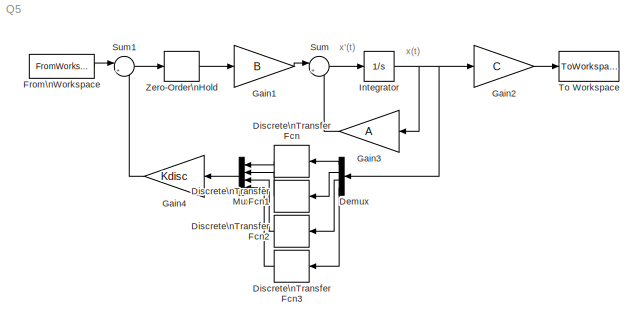
MODEL Q5
KIND model
BLOCK [Demux] Demux
  DisplayOption = bar
  Ports = [1, 4]
BLOCK [DiscreteTransferFcn] Discrete\nTransfer Fcn
  Denominator = [1]
  SampleTime = Ts
BLOCK [DiscreteTransferFcn] Discrete\nTransfer Fcn1
  Denominator = [1]
  SampleTime = Ts
BLOCK [DiscreteTransferFcn] Discrete\nTransfer Fcn2
  Denominator = [1]
  SampleTime = Ts
BLOCK [DiscreteTransferFcn] Discrete\nTransfer Fcn3
  Denominator = [1]
  SampleTime = Ts
BLOCK [FromWorkspace] From\nWorkspace
  SampleTime = 0
  VariableName = [t' u']
  ZeroCross = on
BLOCK [Gain] Gain1
  Gain = B
  Multiplication = Matrix(K*u)
  OutDataType = sfix(16)
  OutDataTypeMode = Inherit via internal rule
  OutDataTypeStr = Inherit: Inherit via internal rule
  OutScaling = 2^0
  ParamDataTypeStr = Inherit: Inherit via internal rule
  ParameterDataType = sfix(16)
  ParameterDataTypeMode = Inherit via internal rule
  ParameterScaling = 2^0
  SaturateOnIntegerOverflow = off
BLOCK [Gain] Gain2
  Gain = C
  Multiplication = Matrix(K*u)
  OutDataType = sfix(16)
  OutDataTypeMode = Inherit via internal rule
  OutDataTypeStr = Inherit: Inherit via internal rule
  OutScaling = 2^0
  ParamDataTypeStr = Inherit: Inherit via internal rule
  ParameterDataType = sfix(16)
  ParameterDataTypeMode = Inherit via internal rule
  ParameterScaling = 2^0
  SaturateOnIntegerOverflow = off
BLOCK [Gain] Gain3
  Gain = A
  Multiplication = Matrix(K*u)
  OutDataType = sfix(16)
  OutDataTypeMode = Inherit via internal rule
  OutDataTypeStr = Inherit: Inherit via internal rule
  OutScaling = 2^0
  ParamDataTypeStr = Inherit: Inherit via internal rule
  ParameterDataType = sfix(16)
  ParameterDataTypeMode = Inherit via internal rule
  ParameterScaling = 2^0
  SaturateOnIntegerOverflow = off
BLOCK [Gain] Gain4
  Gain = Kdisc
  Multiplication = Matrix(K*u)
  OutDataType = sfix(16)
  OutDataTypeMode = Inherit via internal rule
  OutDataTypeStr = Inherit: Inherit via internal rule
  OutScaling = 2^0
  ParamDataTypeStr = Inherit: Inherit via internal rule
  ParameterDataType = sfix(16)
  ParameterDataTypeMode = Inherit via internal rule
  ParameterScaling = 2^0
  SaturateOnIntegerOverflow = off
BLOCK [Integrator] Integrator
  Ports = [1, 1]
BLOCK [Mux] Mux
  DisplayOption = bar
  Ports = [4, 1]
BLOCK [Sum] Sum
  IconShape = round
  InputSameDT = off
  Inputs = |++
  OutDataType = sfix(16)
  OutDataTypeMode = Inherit via internal rule
  OutDataTypeStr = Inherit: Inherit via internal rule
  OutScaling = 2^0
  Ports = [2, 1]
  SaturateOnIntegerOverflow = off
BLOCK [Sum] Sum1
  IconShape = round
  InputSameDT = off
  Inputs = |+-
  OutDataType = sfix(16)
  OutDataTypeMode = Inherit via internal rule
  OutDataTypeStr = Inherit: Inherit via internal rule
  OutScaling = 2^0
  Ports = [2, 1]
  SaturateOnIntegerOverflow = off
BLOCK [ToWorkspace] To Workspace
  MaxDataPoints = inf
  SampleTime = -1
  SaveFormat = Structure With Time
  VariableName = simout
BLOCK [ZeroOrderHold] Zero-Order\nHold
  SampleTime = Ts
ANNOTATION (root): x'(t)
ANNOTATION (root): x(t)
LINE Demux:1 -> Discrete\nTransfer Fcn:1
LINE Demux:2 -> Discrete\nTransfer Fcn1:1
LINE Demux:3 -> Discrete\nTransfer Fcn2:1
LINE Demux:4 -> Discrete\nTransfer Fcn3:1
LINE Discrete\nTransfer Fcn1:1 -> Mux:2
LINE Discrete\nTransfer Fcn2:1 -> Mux:3
LINE Discrete\nTransfer Fcn3:1 -> Mux:4
LINE Discrete\nTransfer Fcn:1 -> Mux:1
LINE From\nWorkspace:1 -> Sum1:1
LINE Gain1:1 -> Sum:1
LINE Gain2:1 -> To Workspace:1
LINE Gain3:1 -> Sum:2
LINE Gain4:1 -> Sum1:2
NET Integrator:1 -> Demux:1, Gain2:1, Gain3:1
LINE Mux:1 -> Gain4:1
LINE Sum1:1 -> Zero-Order\nHold:1
LINE Sum:1 -> Integrator:1
LINE Zero-Order\nHold:1 -> Gain1:1
note: NET lines group one-source signal fan-out (src -> all destinations, sorted); 1:1 wires keep LINE
